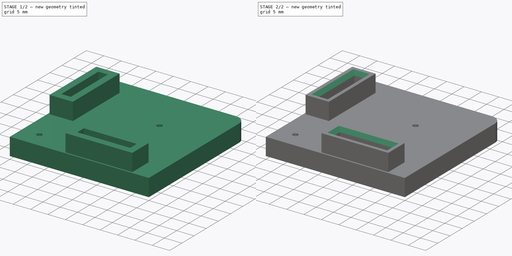
[diagram: build sequence overview — one tinted view per stage of 2, left to right]
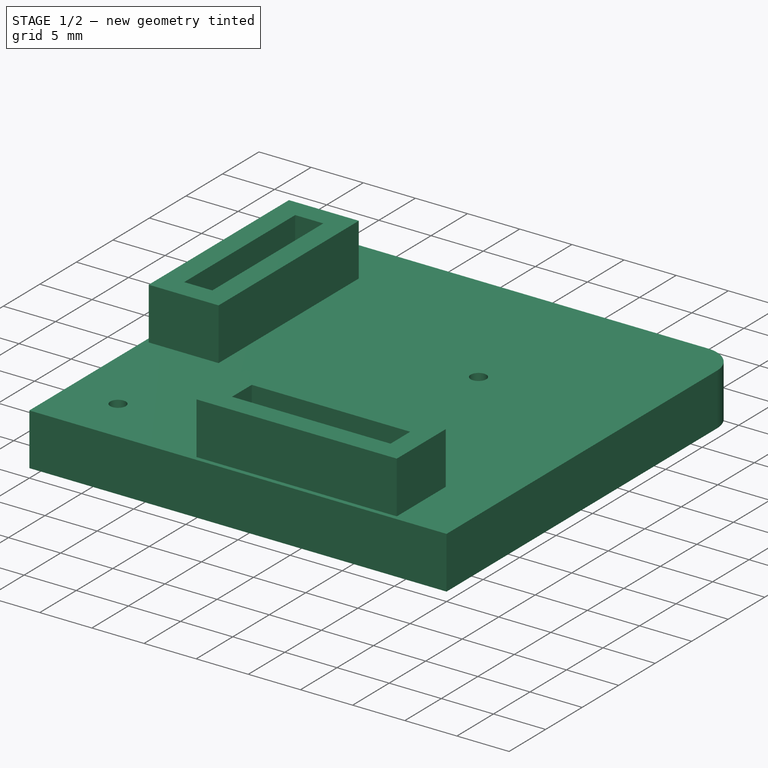
[diagram: stage 1 of 2 — iso view after this stage's code; geometry added in this stage tinted green]
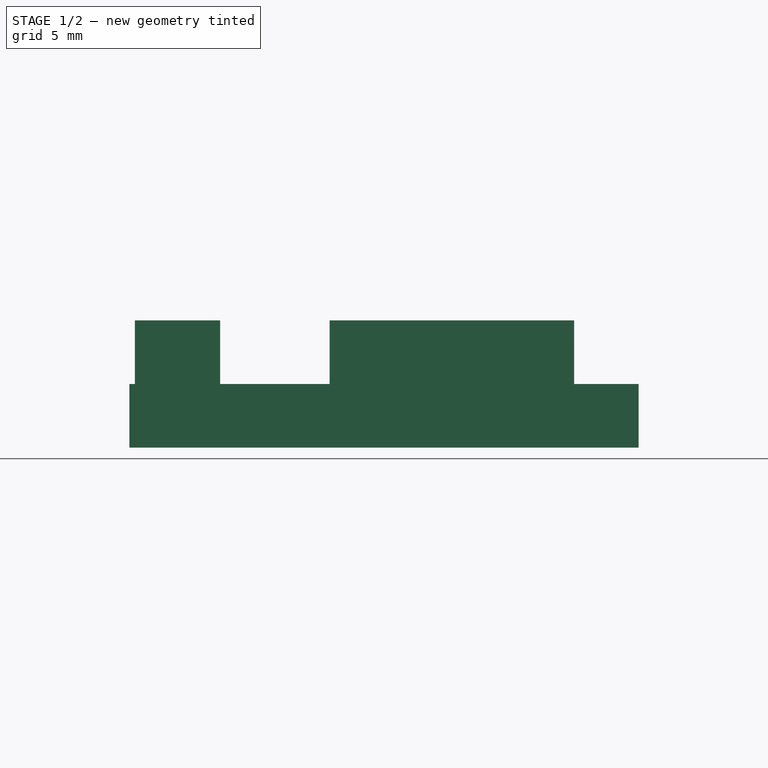
[diagram: stage 1 of 2 — front view after this stage's code; geometry added in this stage tinted green]
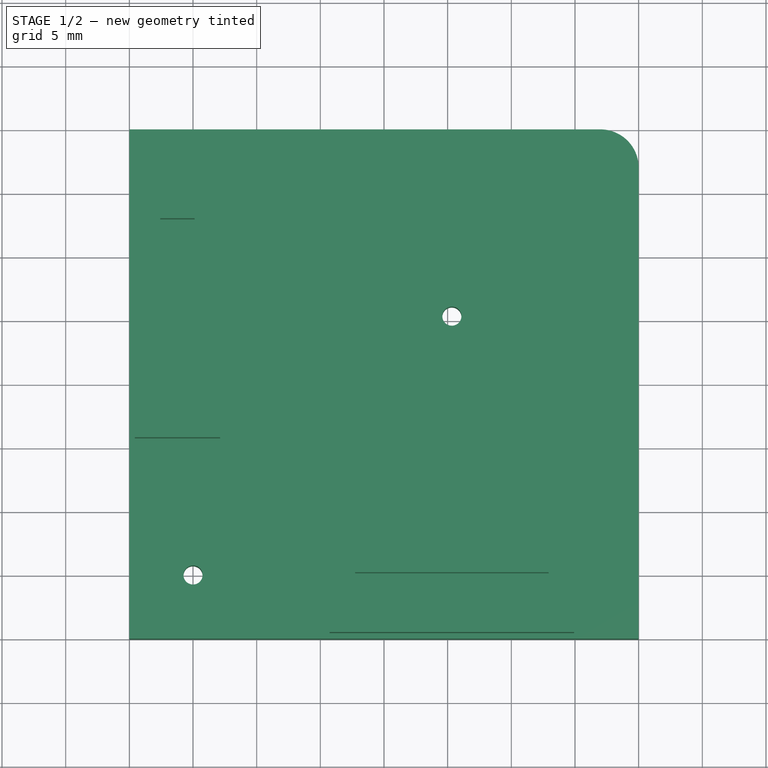
[diagram: stage 1 of 2 — top view after this stage's code; geometry added in this stage tinted green]
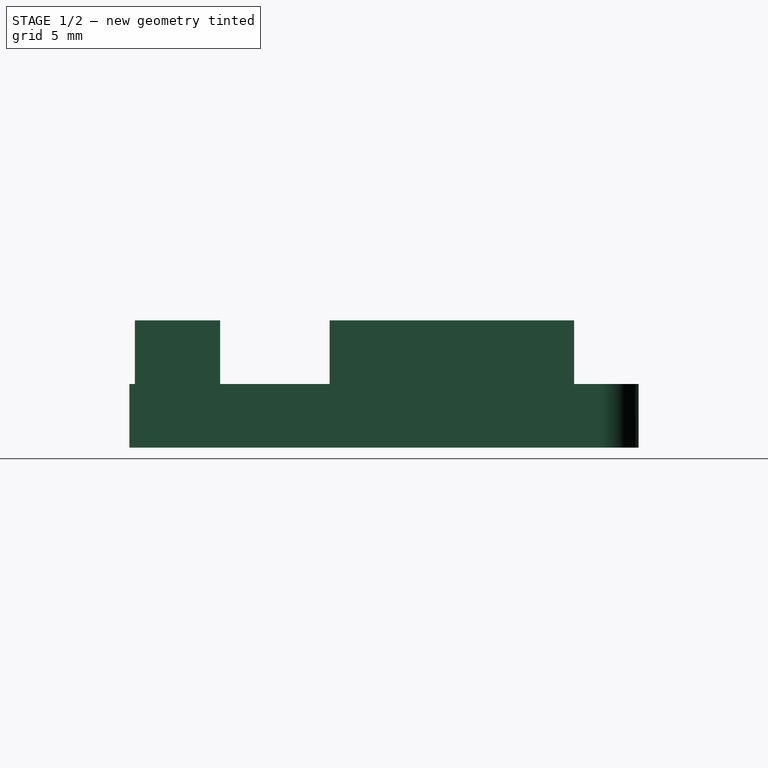
[diagram: stage 1 of 2 — right view after this stage's code; geometry added in this stage tinted green]
FCSTD DOCUMENT  (FreeCAD 0.18R15969 (Git))
Label: FFC_connector_jig
License: All rights reserved
LicenseURL: http://en.wikipedia.org/wiki/All_rights_reserved
objects: Sketcher::SketchObject×2, PartDesign::Pad×2, PartDesign::Chamfer×1, PartDesign::Body×1
note: 8 computed .brp shape members not serialized (recipe doc carries the construction recipe); baked Part::Feature solids carry a one-line shape summary decoded from their .brp

FEATURE [Sketcher::SketchObject] Sketch
  MapMode = 5
  Support = -> [XY_Plane]
  expr: Constraints[12] = 20.33016
  sketch-geometry (8):
    g0: LineSegment StartX=0 StartY=0 StartZ=0 EndX=40 EndY=0 EndZ=0
    g1: LineSegment StartX=40 StartY=0 StartZ=0 EndX=40 EndY=37 EndZ=0
    g2: LineSegment StartX=37 StartY=40 StartZ=0 EndX=0 EndY=40 EndZ=0
    g3: LineSegment StartX=0 StartY=40 StartZ=0 EndX=0 EndY=0 EndZ=0
    g4: LineSegment [constr] StartX=0 StartY=0 StartZ=0 EndX=37 EndY=37 EndZ=0
    g5: Circle CenterX=5 CenterY=5 CenterZ=0 NormalX=0 NormalY=0 NormalZ=1 AngleXU=0 Radius=0.75
    g6: Circle CenterX=25.3302 CenterY=25.3302 CenterZ=0 NormalX=0 NormalY=0 NormalZ=1 AngleXU=0 Radius=0.75
    g7: ArcOfCircle CenterX=37 CenterY=37 CenterZ=0 NormalX=0 NormalY=0 NormalZ=1 AngleXU=0 Radius=3 StartAngle=0 EndAngle=1.5708
  constraints (21):
    c: Coincident(g0,g1)
    c: Coincident(g2,g3)
    c: Coincident(g3,g0)
    c: Horizontal(g0)
    c: Horizontal(g2)
    c: Vertical(g1)
    c: Vertical(g3)
    c: Coincident(g0,g-1)
    c: Equal(g3,g0)
    c: Coincident(g4,g0)
    c: PointOnObject(g5,g4)
    c: PointOnObject(g6,g4)
    c: DistanceX(g5,g6) = 20.3302
    c: Radius(g5) = 0.75
    c: Equal(g5,g6)
    c: DistanceX(g0,g5) = 5
    c: Tangent(g2,g7) = -1.5708
    c: Tangent(g1,g7) = -1.5708
    c: DistanceX(g0,g0) = 40
    c: Radius(g7) = 3
    c: Coincident(g4,g7)
FEATURE [PartDesign::Pad] Pad
  Length = 5
  Length2 = 100
  Profile = -> Sketch
  Refine = true
  Type = 0
FEATURE [Sketcher::SketchObject] Sketch001
  ExternalGeometry = -> [Pad]
  MapMode = 5
  Placement = pos=(0,0,5) rot=(0,0,1;0rad)
  Support = -> [Pad]
  expr: Constraints[55] = 15 + 0.2
  expr: Constraints[54] = 2.5 + 0.2
  sketch-geometry (26):
    g0: LineSegment StartX=0.43016 StartY=15.7302 StartZ=0 EndX=7.13016 EndY=15.7302 EndZ=0
    g1: LineSegment StartX=7.13016 StartY=15.7302 StartZ=0 EndX=7.13016 EndY=34.9302 EndZ=0
    g2: LineSegment StartX=7.13016 StartY=34.9302 StartZ=0 EndX=0.43016 EndY=34.9302 EndZ=0
    g3: LineSegment StartX=0.43016 StartY=34.9302 StartZ=0 EndX=0.43016 EndY=15.7302 EndZ=0
    g4: LineSegment StartX=2.43016 StartY=17.7302 StartZ=0 EndX=5.13016 EndY=17.7302 EndZ=0
    g5: LineSegment StartX=5.13016 StartY=17.7302 StartZ=0 EndX=5.13016 EndY=32.9302 EndZ=0
    g6: LineSegment StartX=5.13016 StartY=32.9302 StartZ=0 EndX=2.43016 EndY=32.9302 EndZ=0
    g7: LineSegment StartX=2.43016 StartY=32.9302 StartZ=0 EndX=2.43016 EndY=17.7302 EndZ=0
    g8: LineSegment StartX=15.7302 StartY=7.13016 StartZ=0 EndX=34.9302 EndY=7.13016 EndZ=0
    g9: LineSegment StartX=34.9302 StartY=7.13016 StartZ=0 EndX=34.9302 EndY=0.43016 EndZ=0
    g10: LineSegment StartX=34.9302 StartY=0.43016 StartZ=0 EndX=15.7302 EndY=0.43016 EndZ=0
    g11: LineSegment StartX=15.7302 StartY=0.43016 StartZ=0 EndX=15.7302 EndY=7.13016 EndZ=0
    g12: LineSegment StartX=17.7302 StartY=5.13016 StartZ=0 EndX=32.9302 EndY=5.13016 EndZ=0
    g13: LineSegment StartX=32.9302 StartY=5.13016 StartZ=0 EndX=32.9302 EndY=2.43016 EndZ=0
    g14: LineSegment StartX=32.9302 StartY=2.43016 StartZ=0 EndX=17.7302 EndY=2.43016 EndZ=0
    g15: LineSegment StartX=17.7302 StartY=2.43016 StartZ=0 EndX=17.7302 EndY=5.13016 EndZ=0
    g16: LineSegment [constr] StartX=17.7302 StartY=5.13016 StartZ=0 EndX=15.7302 EndY=7.13016 EndZ=0
    g17: LineSegment [constr] StartX=32.9302 StartY=5.13016 StartZ=0 EndX=34.9302 EndY=7.13016 EndZ=0
    g18: LineSegment [constr] StartX=17.7302 StartY=2.43016 StartZ=0 EndX=15.7302 EndY=0.43016 EndZ=0
    g19: LineSegment [constr] StartX=5.13016 StartY=17.7302 StartZ=0 EndX=7.13016 EndY=15.7302 EndZ=0
    g20: LineSegment [constr] StartX=2.43016 StartY=17.7302 StartZ=0 EndX=0.43016 EndY=15.7302 EndZ=0
    g21: LineSegment [constr] StartX=5.13016 StartY=32.9302 StartZ=0 EndX=7.13016 EndY=34.9302 EndZ=0
    g22: LineSegment [constr] StartX=7.13016 StartY=34.9302 StartZ=0 EndX=25.3302 EndY=25.3302 EndZ=0
    g23: LineSegment [constr] StartX=25.3302 StartY=25.3302 StartZ=0 EndX=7.13016 EndY=15.7302 EndZ=0
    g24: LineSegment [constr] StartX=25.3302 StartY=25.3302 StartZ=0 EndX=15.7302 EndY=7.13016 EndZ=0
    g25: LineSegment [constr] StartX=25.3302 StartY=25.3302 StartZ=0 EndX=34.9302 EndY=7.13016 EndZ=0
  constraints (68):
    c: Coincident(g0,g1)
    c: Coincident(g1,g2)
    c: Coincident(g2,g3)
    c: Coincident(g3,g0)
    c: Horizontal(g0)
    c: Horizontal(g2)
    c: Vertical(g1)
    c: Vertical(g3)
    c: Coincident(g4,g5)
    c: Coincident(g5,g6)
    c: Coincident(g6,g7)
    c: Coincident(g7,g4)
    c: Horizontal(g4)
    c: Horizontal(g6)
    c: Vertical(g5)
    c: Vertical(g7)
    c: Coincident(g8,g9)
    c: Coincident(g9,g10)
    c: Coincident(g10,g11)
    c: Coincident(g11,g8)
    c: Horizontal(g8)
    c: Horizontal(g10)
    c: Vertical(g9)
    c: Vertical(g11)
    c: Coincident(g12,g13)
    c: Coincident(g13,g14)
    c: Coincident(g14,g15)
    c: Coincident(g15,g12)
    c: Horizontal(g12)
    c: Horizontal(g14)
    c: Vertical(g13)
    c: Vertical(g15)
    c: Coincident(g16,g12)
    c: Coincident(g16,g8)
    c: Coincident(g17,g12)
    c: Coincident(g17,g8)
    c: Coincident(g18,g14)
    c: Coincident(g18,g10)
    c: Coincident(g19,g4)
    c: Coincident(g19,g0)
    c: Coincident(g20,g4)
    c: Coincident(g20,g0)
    c: Coincident(g21,g5)
    c: Coincident(g21,g1)
    c: Equal(g21,g19)
    c: Equal(g19,g20)
    c: Equal(g20,g16)
    c: Equal(g16,g18)
    c: Equal(g18,g17)
    c: Equal(g10,g3)
    c: Equal(g0,g11)
    c: Angle(g16,g8) = 0.785398
    c: Parallel(g16,g19)
    c: DistanceX(g13,g9) = 2
    c: DistanceY(g13,g13) = 2.7
    c: DistanceX(g14,g14) = 15.2
    c: Coincident(g22,g1)
    c: Coincident(g22,g-4)
    c: Coincident(g23,g22)
    c: Coincident(g23,g0)
    c: Coincident(g24,g22)
    c: Coincident(g24,g8)
    c: Coincident(g25,g22)
    c: Coincident(g25,g8)
    c: Equal(g25,g24)
    c: Equal(g24,g23)
    c: Equal(g23,g22)
    c: DistanceY(g12,g22) = 20.2
FEATURE [PartDesign::Pad] Pad001
  BaseFeature = -> Pad
  Length = 5
  Length2 = 100
  Profile = -> Sketch001
  Refine = true
  Type = 0
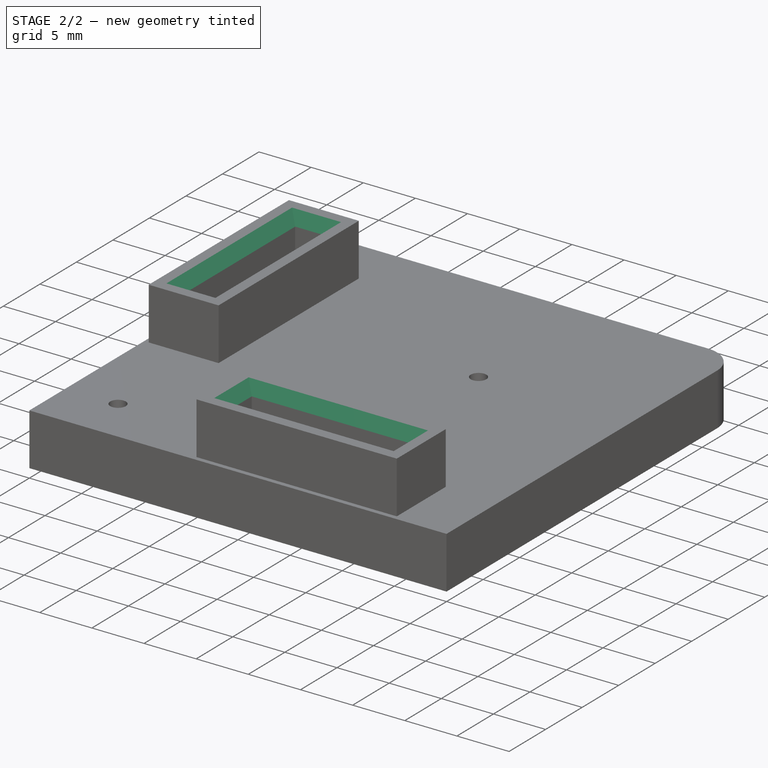
[diagram: stage 2 of 2 — iso view after this stage's code; geometry added in this stage tinted green]
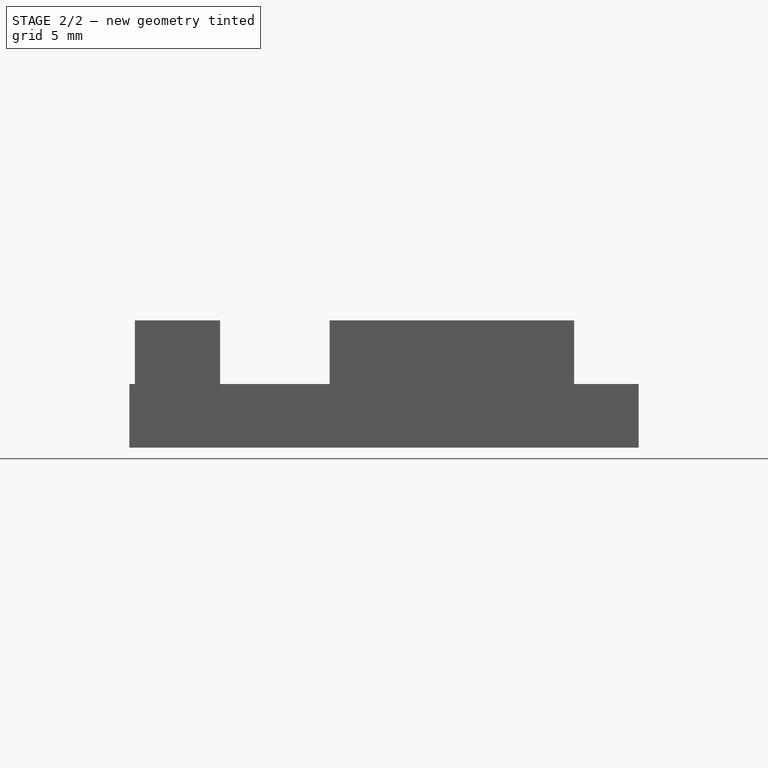
[diagram: stage 2 of 2 — front view after this stage's code; geometry added in this stage tinted green]
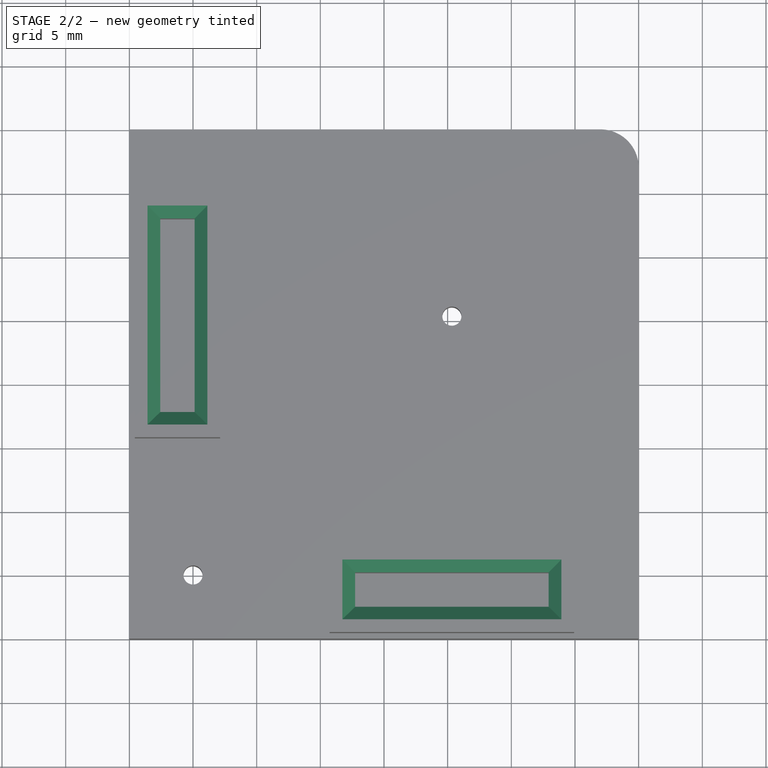
[diagram: stage 2 of 2 — top view after this stage's code; geometry added in this stage tinted green]
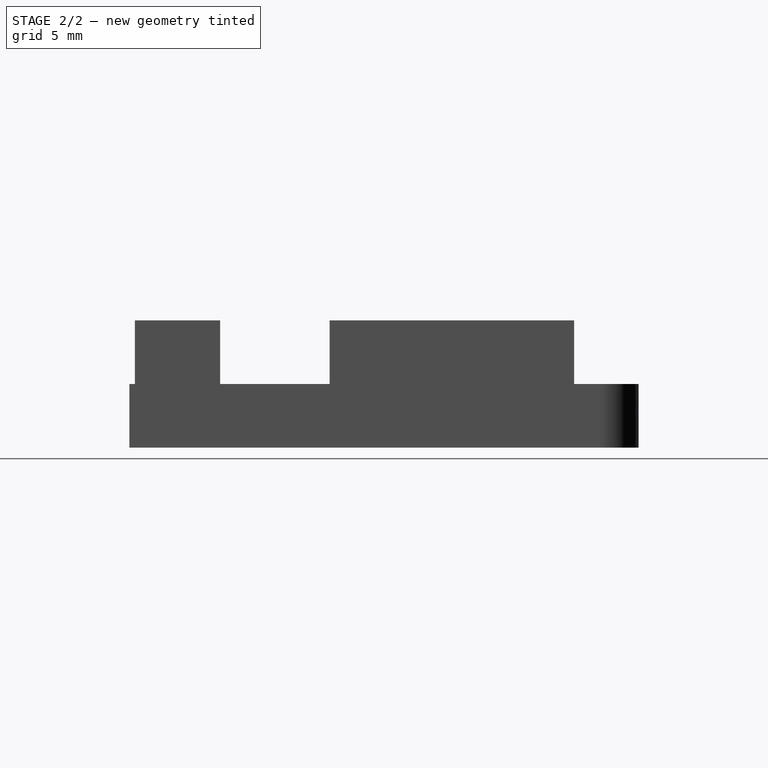
[diagram: stage 2 of 2 — right view after this stage's code; geometry added in this stage tinted green]
FEATURE [PartDesign::Chamfer] Chamfer
  Base = -> Pad001 [Edge47,Edge46,Edge49,Edge48,Edge52,Edge53,Edge50,Edge51]
  BaseFeature = -> Pad001
  Size = 1
FEATURE [PartDesign::Body] Body
  Group = -> [Sketch,Pad,Sketch001,Pad001,Chamfer]
  Origin = -> Origin
  Tip = -> Chamfer
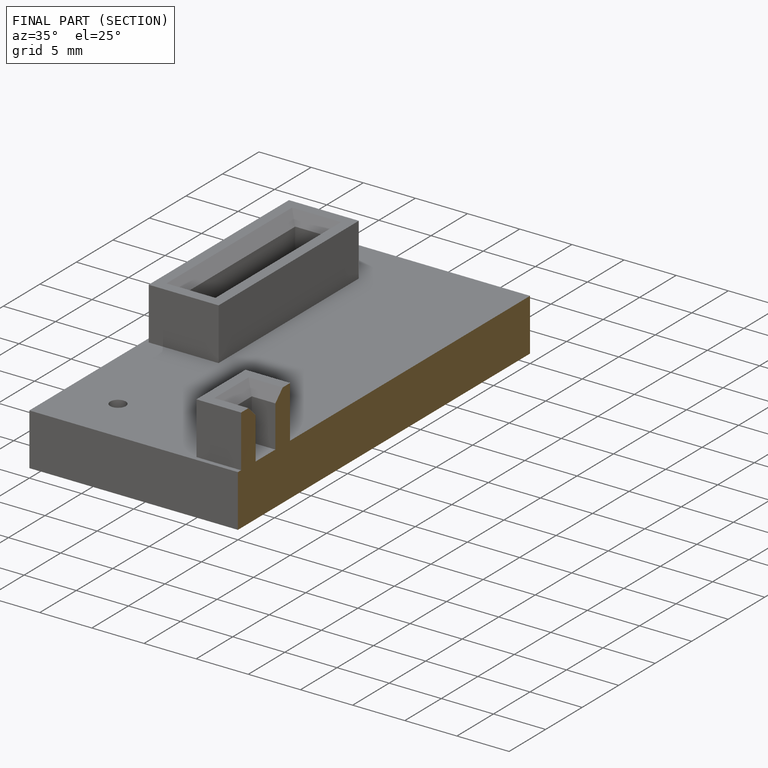
[diagram: finished part — half-section view (interior)]
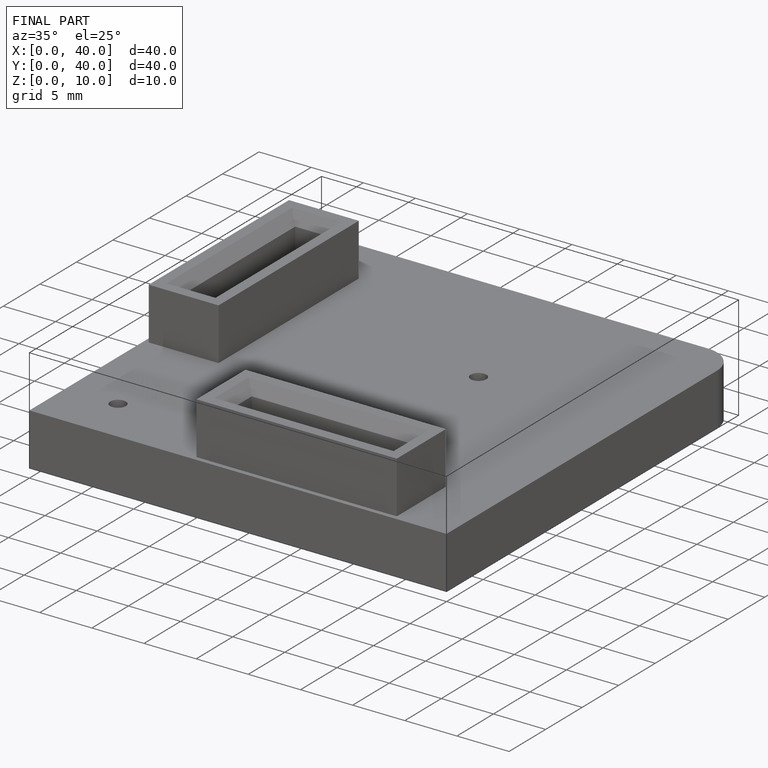
[diagram: finished part — iso view with bounding-box wireframe]
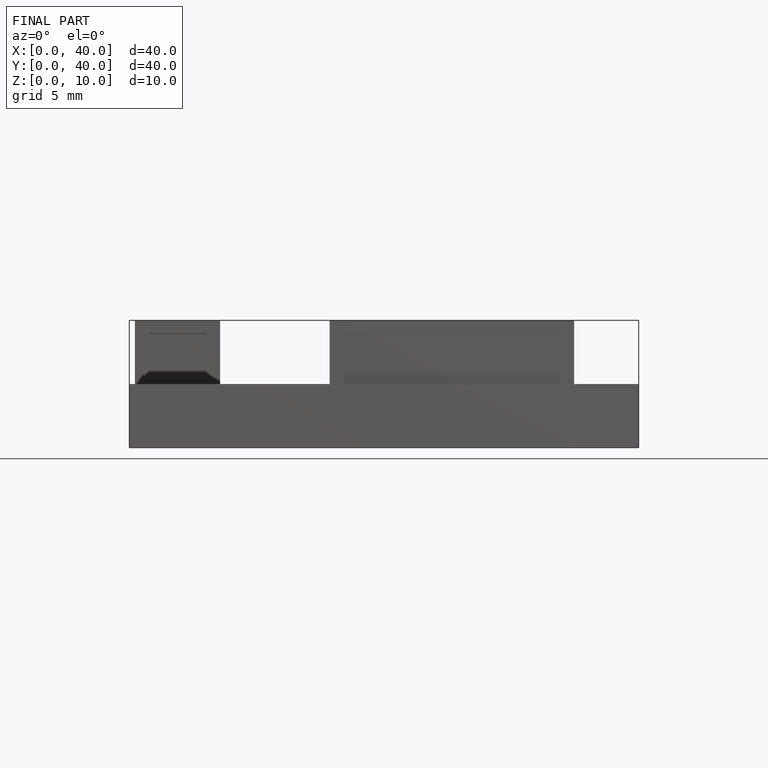
[diagram: finished part — front view with bounding-box wireframe]
